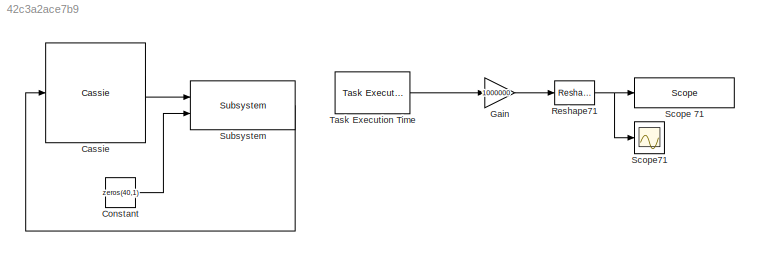
MODEL slx_42c3a2ace7b9
KIND model
CONFIG AbsTol = auto
CONFIG EnableMultiTasking = on
CONFIG FixedStep = 0.0005
CONFIG InitFcn = isSim = 0;\nPreFunctions.CustomInitFcn;
CONFIG MaxStep = auto
CONFIG MinStep = auto
CONFIG RelTol = 1e-3
CONFIG SampleTimeConstraint = Unconstrained
CONFIG Solver = FixedStepDiscrete
CONFIG SolverName = FixedStepDiscrete
CONFIG StartTime = 0.0
CONFIG StopTime = inf
BLOCK [Reference] Cassie  REF=CassieLibrary/RealTime/Cassie
  Ports = [1, 2]
  SourceBlock = CassieLibrary/RealTime/Cassie
BLOCK [Constant] Constant
  Value = zeros(40,1)
BLOCK [Gain] Gain
  Gain = 1000000
  OutDataTypeStr = Inherit: Inherit via internal rule
  ParamDataTypeStr = Inherit: Inherit via internal rule
  SaturateOnIntegerOverflow = off
BLOCK [Reshape] Reshape71
  Ports = [1, 1]
BLOCK [Reference] Scope 71  REF=slrtlib/Displays and
Logging/Scope 
  Ports = [1]
  SourceBlock = slrtlib/Displays and\nLogging/Scope
  SourceProductBaseCode = XP
  SourceProductName = Simulink Real-Time
  SourceType = xpcscopeblock
BLOCK [Scope] Scope71
  NumInputPorts = 1
  Ports = [1]
  ScopeSpecificationString = Simulink.scopes.TimeScopeBlockCfg('CurrentConfiguration', extmgr.ConfigurationSet(extmgr.Configuration('Core','General UI',true),extmgr.Configuration('Core','Source UI',true),extmgr.Configuration('Sources','WiredSimulink',true),extmgr.Configuration('Visuals','Time Domain',true),extmgr.Configuration('Tools','Plot Navigation',true),extmgr.Configuration('Tools','Measurements',true)),'Version','2017b'...<+1ch>
BLOCK [Reference] Subsystem  REF=Cassie_CommandBlock_Library_5/Subsystem
  Ports = [2, 1]
  SourceBlock = Cassie_CommandBlock_Library_5/Subsystem
  SourceType = SubSystem
BLOCK [Reference] Task Execution Time   REF=slrtlib/Target
Management/Execution
Parameters/Task Execution
Time 
  Ports = [0, 1]
  SourceBlock = slrtlib/Target\nManagement/Execution\nParameters/Task Execution\nTime
  SourceProductBaseCode = XP
  SourceProductName = Simulink Real-Time
  SourceType = xpctet
LINE Cassie:1 -> Subsystem:1
LINE Constant:1 -> Subsystem:2
LINE Gain:1 -> Reshape71:1
NET Reshape71:1 -> Scope 71:1, Scope71:1
LINE Subsystem:1 -> Cassie:1
LINE Task Execution Time :1 -> Gain:1
note: NET lines group one-source signal fan-out (src -> all destinations, sorted); 1:1 wires keep LINE
